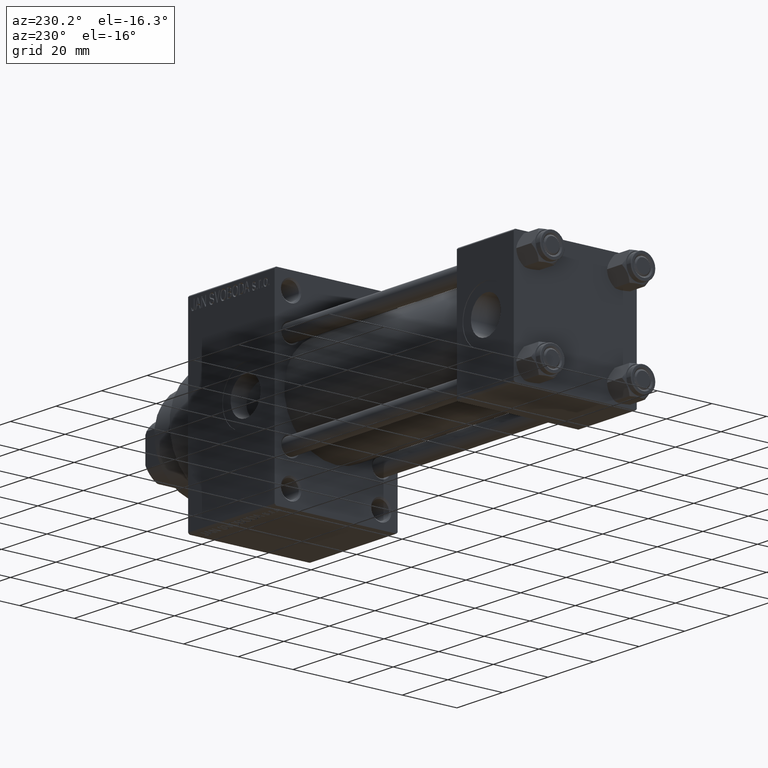
[diagram: clean part render]
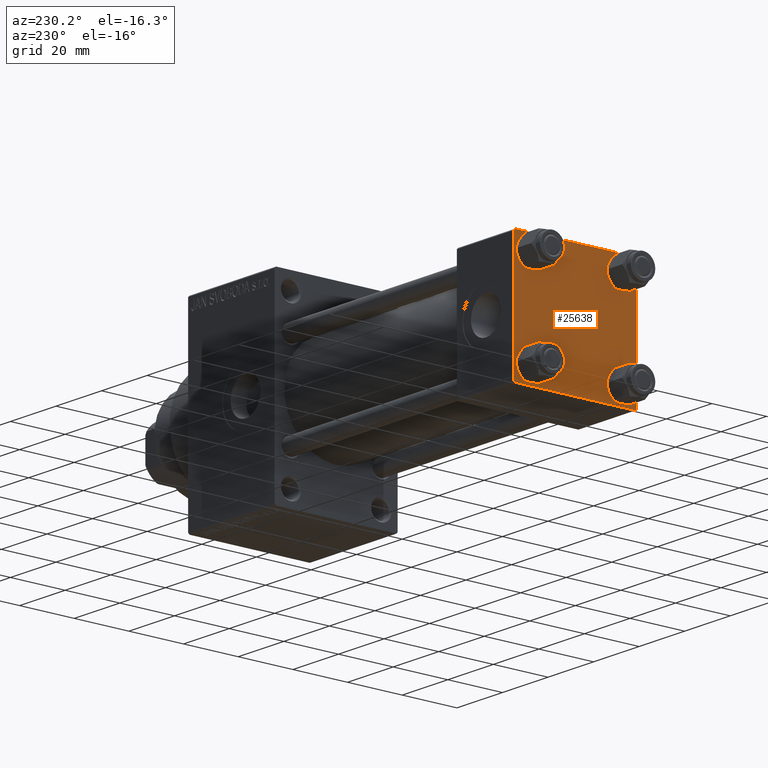
[diagram: same view with one face highlighted and labeled with its STEP entity id]
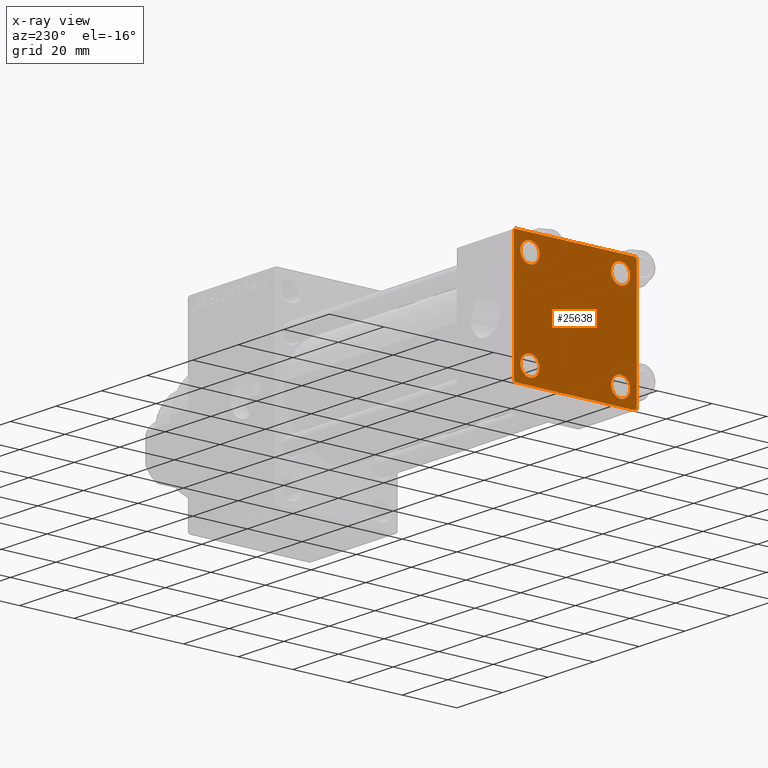
[diagram: x-ray of the same camera — body ghosted, the highlighted face saturated]
A machine part, auxiliary view. The second image highlights one B-rep face of the part: STEP entity #25638.
The next image is the same camera in x-ray: the body ghosted, the highlighted face saturated — about 0% of this face is hidden behind the body in this view.
In plain terms, the highlighted planar face has unit normal (-1, 0, 0).
Its self-contained STEP definition (entity closure, byte-faithful):
#61 = DIRECTION ( 'NONE',  ( -0.000000000000000000, 0.7071067811865525687, 0.7071067811865425767 ) ) ;
#130 = FACE_BOUND ( 'NONE', #34522, .T. ) ;
#227 = CARTESIAN_POINT ( 'NONE',  ( 0.000000000000000000, -16.59999999999999076, -13.10000000000001030 ) ) ;
#303 = EDGE_CURVE ( 'NONE', #27336, #1954, #46061, .T. ) ;
#423 = DIRECTION ( 'NONE',  ( 0.000000000000000000, 0.000000000000000000, 1.000000000000000000 ) ) ;
#609 = FACE_BOUND ( 'NONE', #12031, .T. ) ;
#704 = VECTOR ( 'NONE', #41046, 1000.000000000000114 ) ;
#1161 = EDGE_CURVE ( 'NONE', #28761, #40394, #6003, .T. ) ;
#1180 = EDGE_CURVE ( 'NONE', #45712, #27028, #29595, .T. ) ;
#1354 = EDGE_LOOP ( 'NONE', ( #33027, #5194 ) ) ;
#1788 = VECTOR ( 'NONE', #16758, 1000.000000000000000 ) ;
#1829 = ORIENTED_EDGE ( 'NONE', *, *, #35181, .T. ) ;
#1954 = VERTEX_POINT ( 'NONE', #11481 ) ;
#2200 = CARTESIAN_POINT ( 'NONE',  ( 0.000000000000000000, 22.50000000000000000, -22.49999999999999645 ) ) ;
#2409 = DIRECTION ( 'NONE',  ( 1.000000000000000000, -0.000000000000000000, 0.000000000000000000 ) ) ;
#3335 = CARTESIAN_POINT ( 'NONE',  ( 0.000000000000000000, 16.59999999999999787, -13.10000000000000675 ) ) ;
#4315 = EDGE_CURVE ( 'NONE', #34737, #6623, #11624, .T. ) ;
#4437 = FACE_BOUND ( 'NONE', #12042, .T. ) ;
#4705 = CARTESIAN_POINT ( 'NONE',  ( 0.000000000000000000, -22.25000000000014566, -22.24999999999984013 ) ) ;
#4838 = ORIENTED_EDGE ( 'NONE', *, *, #25012, .T. ) ;
#4863 = AXIS2_PLACEMENT_3D ( 'NONE', #11838, #11120, #44740 ) ;
#4897 = CIRCLE ( 'NONE', #41454, 3.499999999999996003 ) ;
#5194 = ORIENTED_EDGE ( 'NONE', *, *, #28548, .T. ) ;
#5506 = DIRECTION ( 'NONE',  ( 1.000000000000000000, -0.000000000000000000, 0.000000000000000000 ) ) ;
#6003 = CIRCLE ( 'NONE', #28081, 3.499999999999996003 ) ;
#6623 = VERTEX_POINT ( 'NONE', #23877 ) ;
#6943 = EDGE_LOOP ( 'NONE', ( #32753, #40995, #4838, #43719, #39267, #14024, #7233, #15132 ) ) ;
#7233 = ORIENTED_EDGE ( 'NONE', *, *, #24789, .F. ) ;
#7494 = AXIS2_PLACEMENT_3D ( 'NONE', #17891, #29343, #32681 ) ;
#8051 = DIRECTION ( 'NONE',  ( 0.000000000000000000, -0.7071067811865426878, 0.7071067811865524577 ) ) ;
#8931 = CARTESIAN_POINT ( 'NONE',  ( 0.000000000000000000, -21.99999999999997158, -22.50000000000000711 ) ) ;
#10109 = CARTESIAN_POINT ( 'NONE',  ( 0.000000000000000000, -16.59999999999999076, -20.10000000000000497 ) ) ;
#10188 = DIRECTION ( 'NONE',  ( 1.000000000000000000, -0.000000000000000000, 0.000000000000000000 ) ) ;
#10194 = CARTESIAN_POINT ( 'NONE',  ( 0.000000000000000000, -16.59999999999999076, 16.60000000000000853 ) ) ;
#10239 = AXIS2_PLACEMENT_3D ( 'NONE', #38520, #13013, #16340 ) ;
#10967 = EDGE_CURVE ( 'NONE', #17382, #45438, #34375, .T. ) ;
#11120 = DIRECTION ( 'NONE',  ( -1.000000000000000000, 0.000000000000000000, -0.000000000000000000 ) ) ;
#11263 = EDGE_CURVE ( 'NONE', #23264, #31349, #34270, .T. ) ;
#11481 = CARTESIAN_POINT ( 'NONE',  ( 0.000000000000000000, 21.99999999999999289, -22.49999999999999645 ) ) ;
#11624 = LINE ( 'NONE', #4705, #30351 ) ;
#11838 = CARTESIAN_POINT ( 'NONE',  ( 0.000000000000000000, 0.000000000000000000, 0.000000000000000000 ) ) ;
#12018 = CIRCLE ( 'NONE', #38679, 3.499999999999996003 ) ;
#12031 = EDGE_LOOP ( 'NONE', ( #15906, #13059 ) ) ;
#12042 = EDGE_LOOP ( 'NONE', ( #1829, #16616 ) ) ;
#12434 = CARTESIAN_POINT ( 'NONE',  ( 0.000000000000000000, 16.59999999999999787, 16.60000000000000497 ) ) ;
#12674 = CARTESIAN_POINT ( 'NONE',  ( 0.000000000000000000, 22.24999999999999645, 22.24999999999999645 ) ) ;
#13013 = DIRECTION ( 'NONE',  ( 1.000000000000000000, -0.000000000000000000, 0.000000000000000000 ) ) ;
#13059 = ORIENTED_EDGE ( 'NONE', *, *, #40865, .T. ) ;
#14024 = ORIENTED_EDGE ( 'NONE', *, *, #45454, .T. ) ;
#14705 = DIRECTION ( 'NONE',  ( 0.000000000000000000, 0.000000000000000000, -1.000000000000000000 ) ) ;
#14941 = CARTESIAN_POINT ( 'NONE',  ( 0.000000000000000000, -22.50000000000000000, 22.50000000000000000 ) ) ;
#15132 = ORIENTED_EDGE ( 'NONE', *, *, #10967, .T. ) ;
#15210 = DIRECTION ( 'NONE',  ( 1.000000000000000000, -0.000000000000000000, 0.000000000000000000 ) ) ;
#15315 = CARTESIAN_POINT ( 'NONE',  ( -0.000000000000000000, -22.24999999999984013, 22.25000000000015277 ) ) ;
#15804 = CARTESIAN_POINT ( 'NONE',  ( 0.000000000000000000, 22.50000000000000000, 22.50000000000000355 ) ) ;
#15906 = ORIENTED_EDGE ( 'NONE', *, *, #42285, .T. ) ;
#16126 = CARTESIAN_POINT ( 'NONE',  ( 0.000000000000000000, 16.59999999999999787, -20.10000000000000142 ) ) ;
#16340 = DIRECTION ( 'NONE',  ( 0.000000000000000000, 0.000000000000000000, 1.000000000000000000 ) ) ;
#16616 = ORIENTED_EDGE ( 'NONE', *, *, #11263, .T. ) ;
#16723 = DIRECTION ( 'NONE',  ( -0.000000000000000000, -0.7071067811865426878, -0.7071067811865524577 ) ) ;
#16726 = AXIS2_PLACEMENT_3D ( 'NONE', #10194, #17582, #38831 ) ;
#16744 = VERTEX_POINT ( 'NONE', #16126 ) ;
#16758 = DIRECTION ( 'NONE',  ( 0.000000000000000000, -1.000000000000000000, -2.312964634635742957E-16 ) ) ;
#17317 = VERTEX_POINT ( 'NONE', #30346 ) ;
#17382 = VERTEX_POINT ( 'NONE', #39308 ) ;
#17582 = DIRECTION ( 'NONE',  ( 1.000000000000000000, -0.000000000000000000, 0.000000000000000000 ) ) ;
#17891 = CARTESIAN_POINT ( 'NONE',  ( 0.000000000000000000, -16.59999999999999076, -16.60000000000000853 ) ) ;
#18620 = VECTOR ( 'NONE', #14705, 1000.000000000000000 ) ;
#18929 = DIRECTION ( 'NONE',  ( 0.000000000000000000, -1.000000000000000000, -7.709882115452476934E-17 ) ) ;
#19532 = CARTESIAN_POINT ( 'NONE',  ( 0.000000000000000000, -16.59999999999999076, 13.10000000000001030 ) ) ;
#20332 = VERTEX_POINT ( 'NONE', #25435 ) ;
#21913 = CARTESIAN_POINT ( 'NONE',  ( 0.000000000000000000, 22.50000000000000000, 22.50000000000000355 ) ) ;
#22525 = VECTOR ( 'NONE', #61, 999.9999999999998863 ) ;
#22907 = DIRECTION ( 'NONE',  ( 1.000000000000000000, -0.000000000000000000, 0.000000000000000000 ) ) ;
#23140 = CARTESIAN_POINT ( 'NONE',  ( 0.000000000000000000, 16.59999999999999787, -16.60000000000000497 ) ) ;
#23264 = VERTEX_POINT ( 'NONE', #19532 ) ;
#23541 = EDGE_CURVE ( 'NONE', #17317, #6623, #32844, .T. ) ;
#23877 = CARTESIAN_POINT ( 'NONE',  ( 0.000000000000000000, -22.50000000000000000, -21.99999999999997158 ) ) ;
#24599 = DIRECTION ( 'NONE',  ( 0.000000000000000000, 0.000000000000000000, 1.000000000000000000 ) ) ;
#24755 = DIRECTION ( 'NONE',  ( 0.000000000000000000, 0.000000000000000000, 1.000000000000000000 ) ) ;
#24767 = CIRCLE ( 'NONE', #28577, 3.499999999999996003 ) ;
#24789 = EDGE_CURVE ( 'NONE', #17382, #20332, #44436, .T. ) ;
#25012 = EDGE_CURVE ( 'NONE', #1954, #34737, #34898, .T. ) ;
#25435 = CARTESIAN_POINT ( 'NONE',  ( 0.000000000000000000, -21.99999999999997868, 22.50000000000000000 ) ) ;
#25638 = ADVANCED_FACE ( 'NONE', ( #4437, #30209, #609, #130, #40683 ), #43790, .T. ) ;
#27028 = VERTEX_POINT ( 'NONE', #10109 ) ;
#27327 = CARTESIAN_POINT ( 'NONE',  ( 0.000000000000000000, 16.59999999999999787, 20.10000000000000142 ) ) ;
#27336 = VERTEX_POINT ( 'NONE', #44894 ) ;
#28081 = AXIS2_PLACEMENT_3D ( 'NONE', #42713, #2409, #24599 ) ;
#28448 = EDGE_CURVE ( 'NONE', #45438, #27336, #31955, .T. ) ;
#28548 = EDGE_CURVE ( 'NONE', #27028, #45712, #24767, .T. ) ;
#28577 = AXIS2_PLACEMENT_3D ( 'NONE', #33106, #15210, #423 ) ;
#28761 = VERTEX_POINT ( 'NONE', #41447 ) ;
#29343 = DIRECTION ( 'NONE',  ( 1.000000000000000000, -0.000000000000000000, 0.000000000000000000 ) ) ;
#29595 = CIRCLE ( 'NONE', #7494, 3.499999999999996003 ) ;
#30059 = CIRCLE ( 'NONE', #10239, 3.499999999999996003 ) ;
#30060 = DIRECTION ( 'NONE',  ( 0.000000000000000000, 0.000000000000000000, 1.000000000000000000 ) ) ;
#30209 = FACE_BOUND ( 'NONE', #1354, .T. ) ;
#30346 = CARTESIAN_POINT ( 'NONE',  ( 0.000000000000000000, -22.50000000000000000, 22.00000000000000000 ) ) ;
#30351 = VECTOR ( 'NONE', #8051, 1000.000000000000000 ) ;
#31349 = VERTEX_POINT ( 'NONE', #44864 ) ;
#31500 = DIRECTION ( 'NONE',  ( 0.000000000000000000, 0.000000000000000000, 1.000000000000000000 ) ) ;
#31955 = LINE ( 'NONE', #21913, #36934 ) ;
#32681 = DIRECTION ( 'NONE',  ( 0.000000000000000000, 0.000000000000000000, 1.000000000000000000 ) ) ;
#32753 = ORIENTED_EDGE ( 'NONE', *, *, #28448, .T. ) ;
#32754 = LINE ( 'NONE', #15315, #22525 ) ;
#32844 = LINE ( 'NONE', #14941, #18620 ) ;
#33027 = ORIENTED_EDGE ( 'NONE', *, *, #1180, .T. ) ;
#33106 = CARTESIAN_POINT ( 'NONE',  ( 0.000000000000000000, -16.59999999999999076, -16.60000000000000853 ) ) ;
#33749 = ORIENTED_EDGE ( 'NONE', *, *, #1161, .T. ) ;
#34270 = CIRCLE ( 'NONE', #16726, 3.499999999999996003 ) ;
#34375 = LINE ( 'NONE', #12674, #704 ) ;
#34522 = EDGE_LOOP ( 'NONE', ( #46665, #33749 ) ) ;
#34737 = VERTEX_POINT ( 'NONE', #8931 ) ;
#34898 = LINE ( 'NONE', #2200, #1788 ) ;
#34906 = CIRCLE ( 'NONE', #47079, 3.499999999999996003 ) ;
#35181 = EDGE_CURVE ( 'NONE', #31349, #23264, #12018, .T. ) ;
#35705 = EDGE_CURVE ( 'NONE', #40394, #28761, #34906, .T. ) ;
#36099 = VECTOR ( 'NONE', #18929, 1000.000000000000000 ) ;
#36441 = VECTOR ( 'NONE', #16723, 1000.000000000000000 ) ;
#36934 = VECTOR ( 'NONE', #39577, 1000.000000000000000 ) ;
#37566 = VERTEX_POINT ( 'NONE', #3335 ) ;
#38199 = CARTESIAN_POINT ( 'NONE',  ( 0.000000000000000000, 22.25000000000014566, -22.24999999999984013 ) ) ;
#38520 = CARTESIAN_POINT ( 'NONE',  ( 0.000000000000000000, 16.59999999999999787, -16.60000000000000497 ) ) ;
#38679 = AXIS2_PLACEMENT_3D ( 'NONE', #42854, #10188, #24755 ) ;
#38831 = DIRECTION ( 'NONE',  ( 0.000000000000000000, 0.000000000000000000, 1.000000000000000000 ) ) ;
#39267 = ORIENTED_EDGE ( 'NONE', *, *, #23541, .F. ) ;
#39308 = CARTESIAN_POINT ( 'NONE',  ( 0.000000000000000000, 21.99999999999999289, 22.50000000000000355 ) ) ;
#39577 = DIRECTION ( 'NONE',  ( 0.000000000000000000, 0.000000000000000000, -1.000000000000000000 ) ) ;
#40394 = VERTEX_POINT ( 'NONE', #27327 ) ;
#40683 = FACE_OUTER_BOUND ( 'NONE', #6943, .T. ) ;
#40865 = EDGE_CURVE ( 'NONE', #16744, #37566, #4897, .T. ) ;
#40995 = ORIENTED_EDGE ( 'NONE', *, *, #303, .T. ) ;
#41046 = DIRECTION ( 'NONE',  ( 0.000000000000000000, 0.7071067811865474617, -0.7071067811865474617 ) ) ;
#41447 = CARTESIAN_POINT ( 'NONE',  ( 0.000000000000000000, 16.59999999999999787, 13.10000000000000675 ) ) ;
#41454 = AXIS2_PLACEMENT_3D ( 'NONE', #23140, #22907, #30060 ) ;
#42285 = EDGE_CURVE ( 'NONE', #37566, #16744, #30059, .T. ) ;
#42713 = CARTESIAN_POINT ( 'NONE',  ( 0.000000000000000000, 16.59999999999999787, 16.60000000000000497 ) ) ;
#42854 = CARTESIAN_POINT ( 'NONE',  ( 0.000000000000000000, -16.59999999999999076, 16.60000000000000853 ) ) ;
#43719 = ORIENTED_EDGE ( 'NONE', *, *, #4315, .T. ) ;
#43790 = PLANE ( 'NONE',  #4863 ) ;
#43953 = CARTESIAN_POINT ( 'NONE',  ( 0.000000000000000000, 22.50000000000000000, 21.99999999999999645 ) ) ;
#44436 = LINE ( 'NONE', #15804, #36099 ) ;
#44740 = DIRECTION ( 'NONE',  ( -0.000000000000000000, 0.000000000000000000, 1.000000000000000000 ) ) ;
#44864 = CARTESIAN_POINT ( 'NONE',  ( 0.000000000000000000, -16.59999999999999076, 20.10000000000000853 ) ) ;
#44894 = CARTESIAN_POINT ( 'NONE',  ( 0.000000000000000000, 22.50000000000000000, -21.99999999999996803 ) ) ;
#45438 = VERTEX_POINT ( 'NONE', #43953 ) ;
#45454 = EDGE_CURVE ( 'NONE', #17317, #20332, #32754, .T. ) ;
#45712 = VERTEX_POINT ( 'NONE', #227 ) ;
#46061 = LINE ( 'NONE', #38199, #36441 ) ;
#46665 = ORIENTED_EDGE ( 'NONE', *, *, #35705, .T. ) ;
#47079 = AXIS2_PLACEMENT_3D ( 'NONE', #12434, #5506, #31500 ) ;